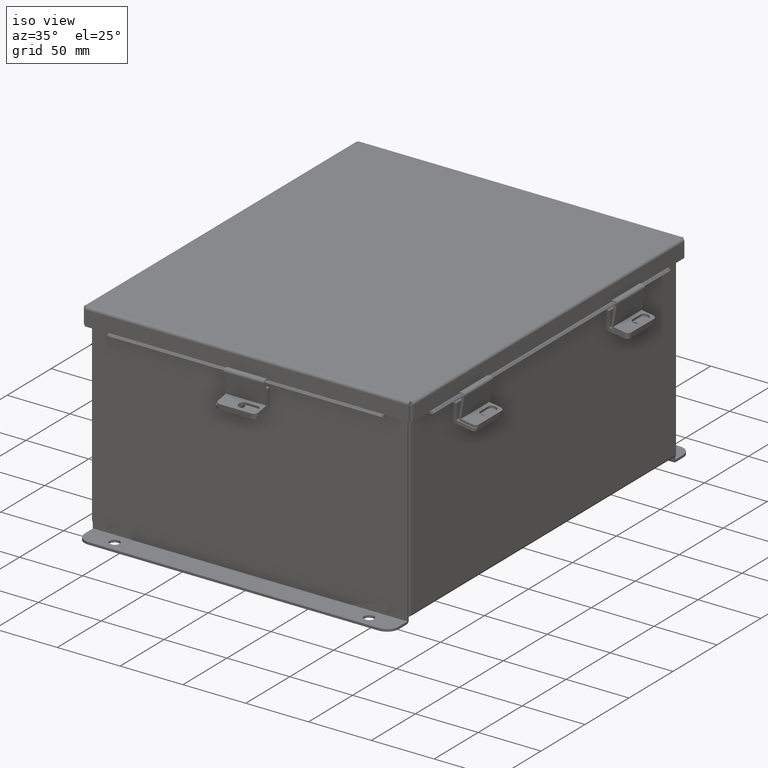
[diagram: clean part render]
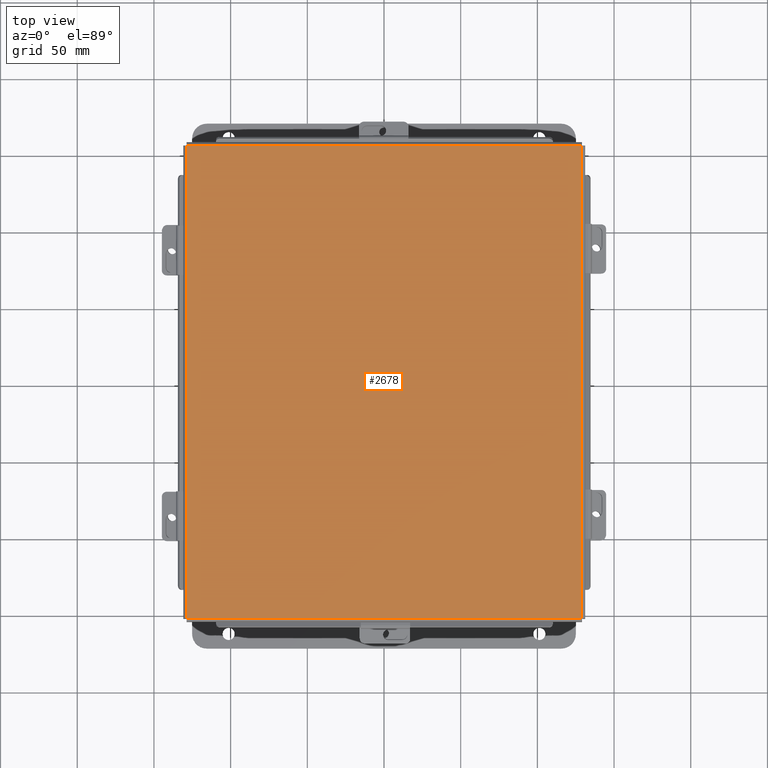
[diagram: tour spotlight — one face highlighted and labeled with its STEP entity id]
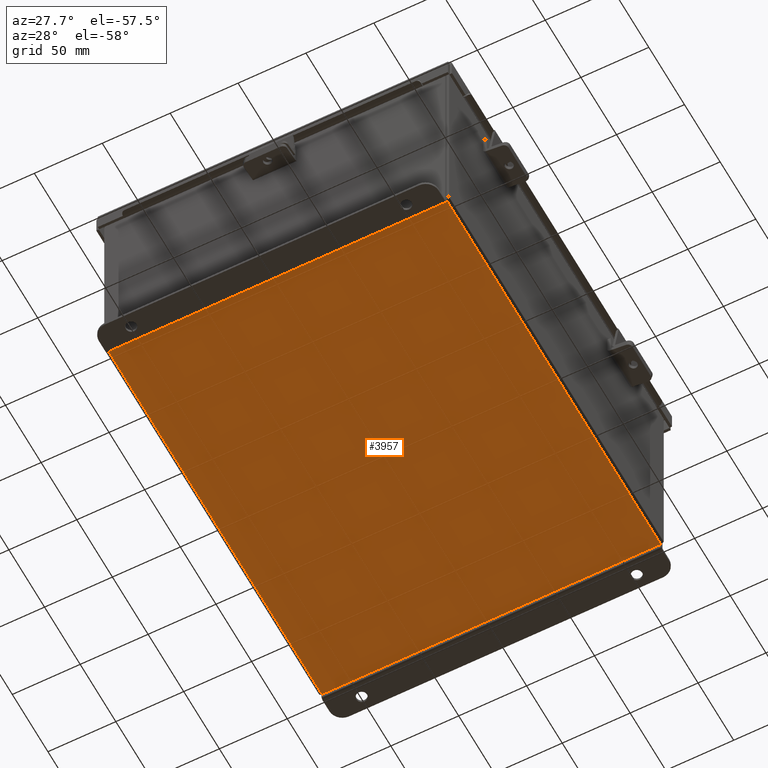
[diagram: tour spotlight — one face highlighted and labeled with its STEP entity id]
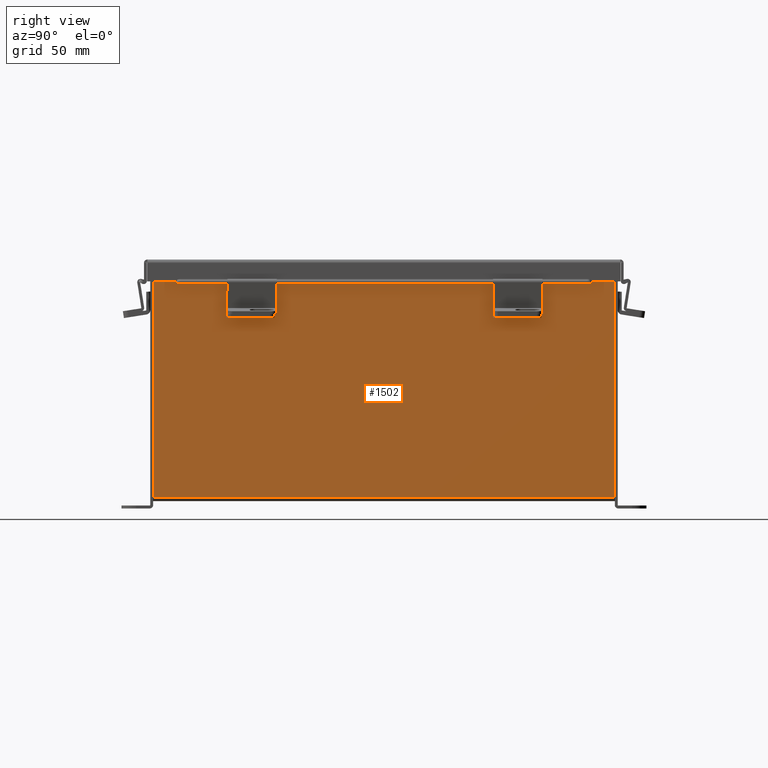
[diagram: tour spotlight — one face highlighted and labeled with its STEP entity id]
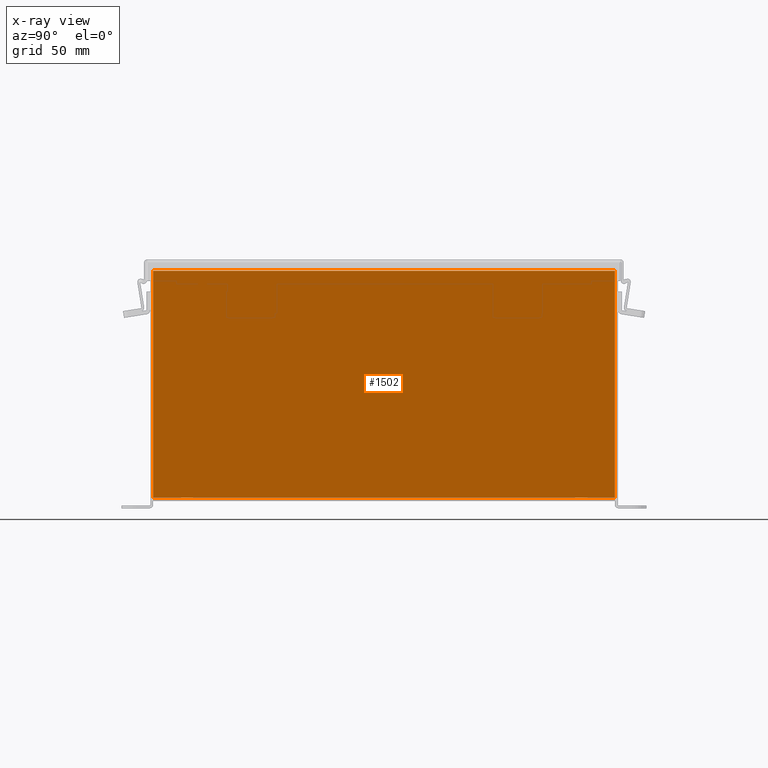
[diagram: x-ray of the same camera — body ghosted, this tour face saturated]
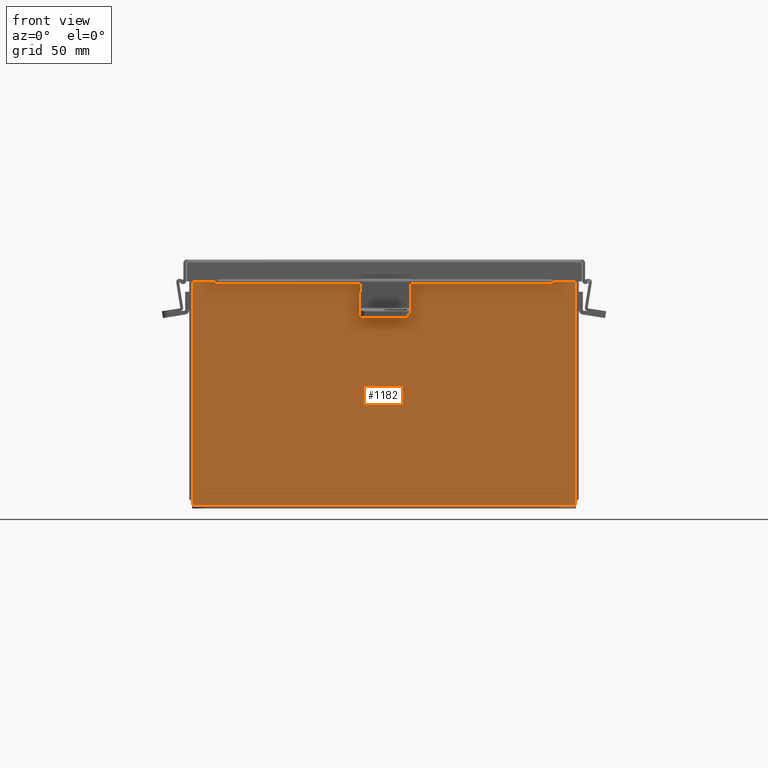
[diagram: tour spotlight — one face highlighted and labeled with its STEP entity id]
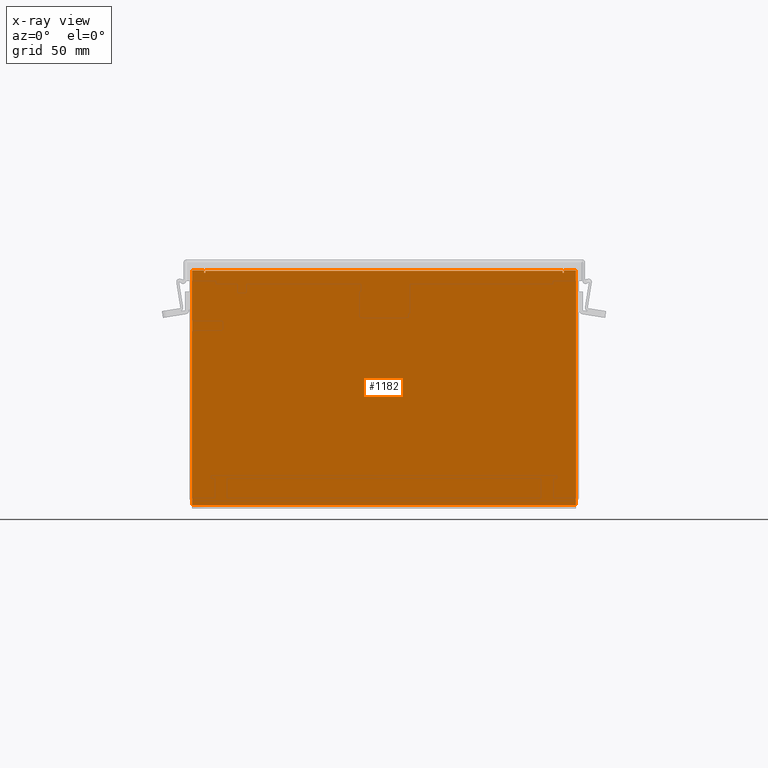
[diagram: x-ray of the same camera — body ghosted, this tour face saturated]
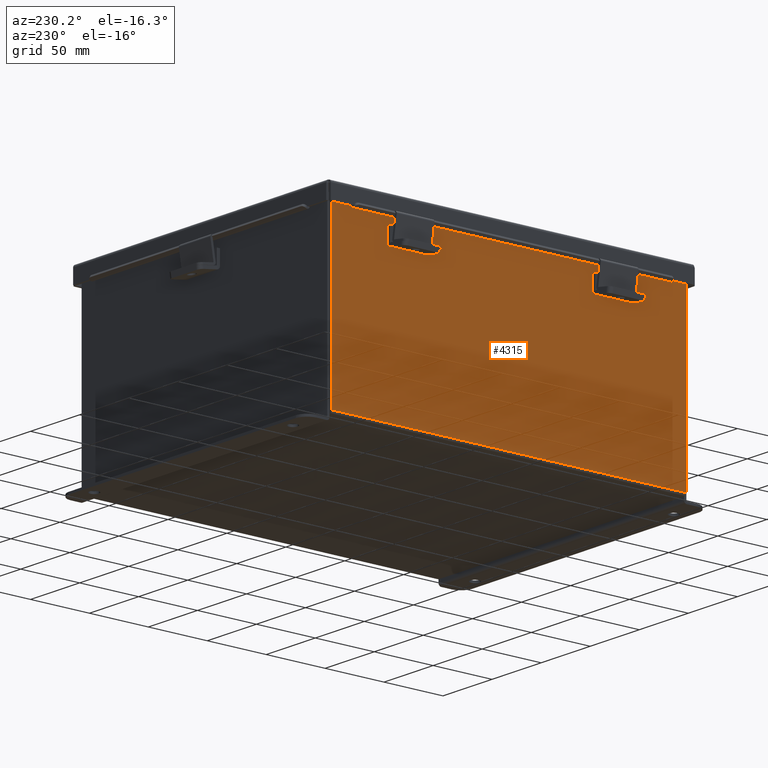
[diagram: tour spotlight — one face highlighted and labeled with its STEP entity id]
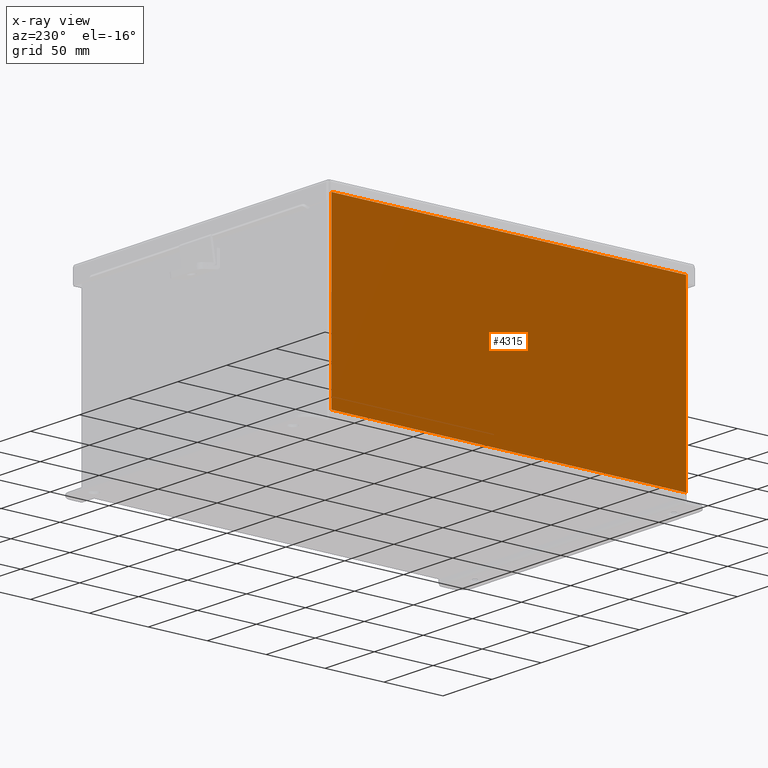
[diagram: x-ray of the same camera — body ghosted, this tour face saturated]
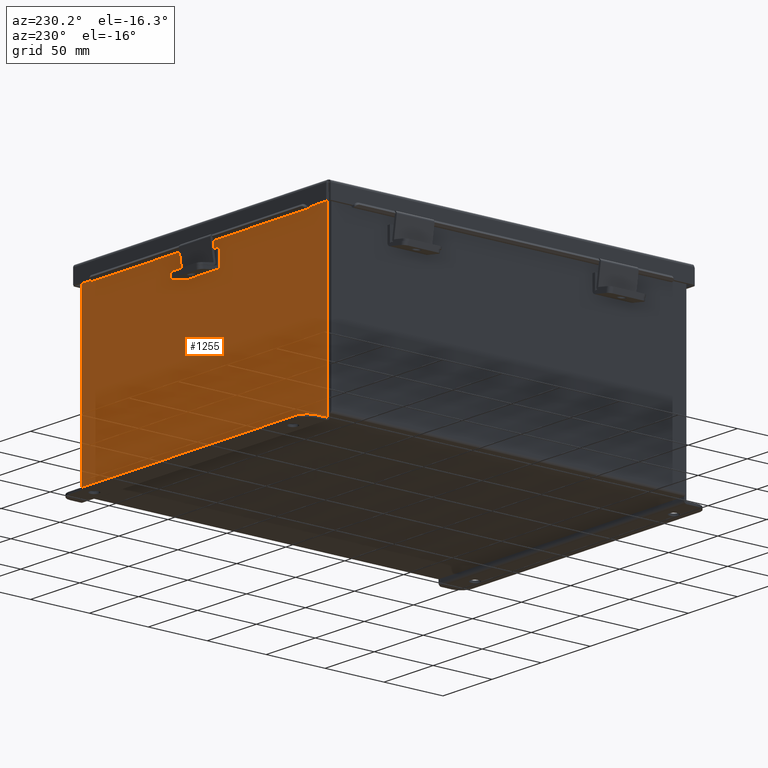
[diagram: tour spotlight — one face highlighted and labeled with its STEP entity id]
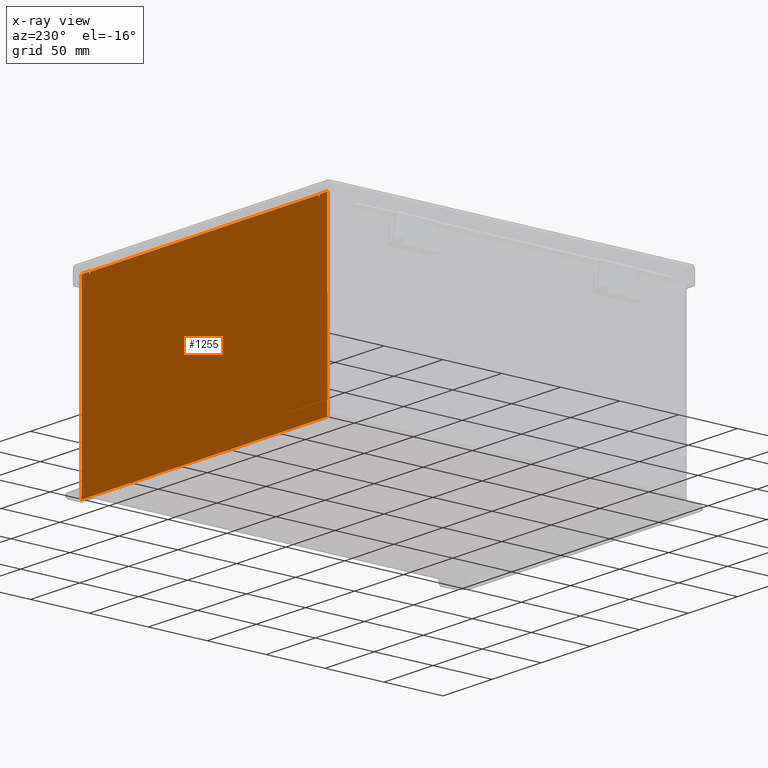
[diagram: x-ray of the same camera — body ghosted, this tour face saturated]
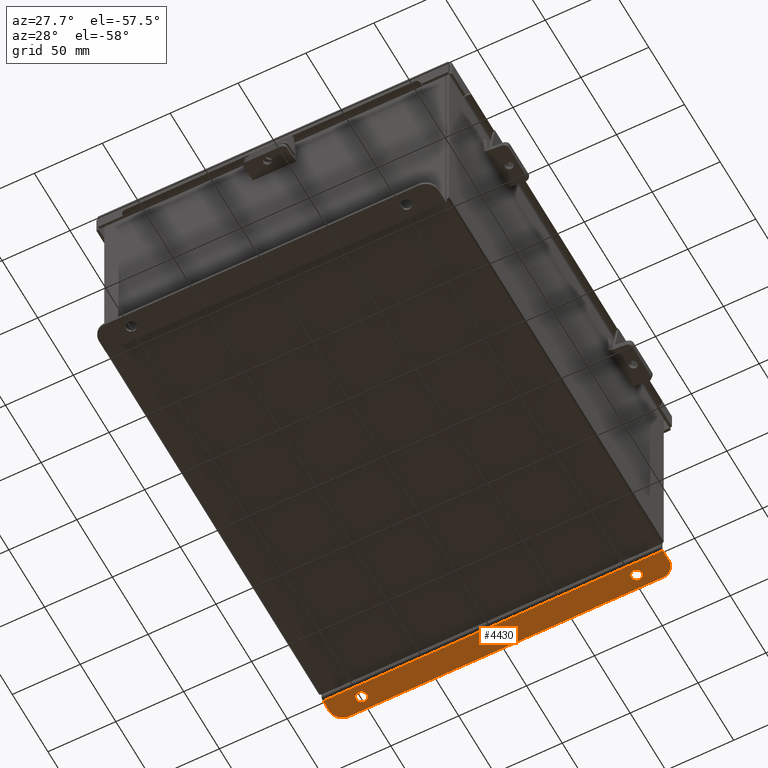
[diagram: tour spotlight — one face highlighted and labeled with its STEP entity id]
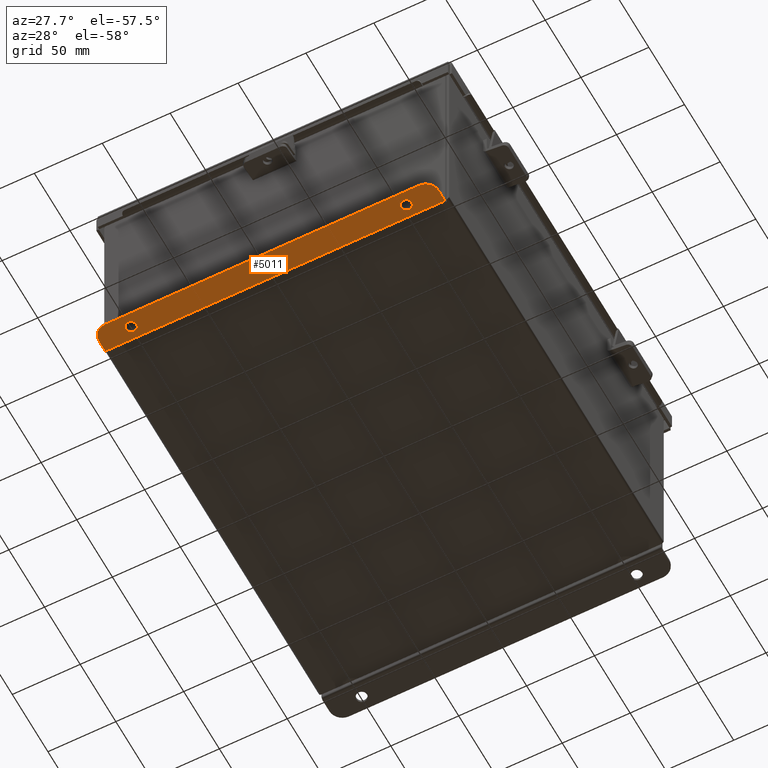
[diagram: tour spotlight — one face highlighted and labeled with its STEP entity id]
A machine part: a face-by-face anatomy tour. The part has 548 B-rep faces; the first image is the clean iso view, then the 8 largest visible faces are spotlighted one at a time (largest first), each with its STEP entity span.

Face 1 — top view, entity #2678. In plain terms, the highlighted planar face has unit normal (-0, -0, 1).
Definition (entity closure, byte-faithful):
#226 = DIRECTION ( 'NONE',  ( -1.000000000000000000, -3.215975411700707400E-030, 0.0000000000000000000 ) ) ;
#640 = DIRECTION ( 'NONE',  ( 1.000000000000000000, 3.215975411700707400E-030, -0.0000000000000000000 ) ) ;
#712 = LINE ( 'NONE', #5761, #3640 ) ;
#898 = CARTESIAN_POINT ( 'NONE',  ( 0.0000000000000000000, 0.0000000000000000000, -0.07470000000000015500 ) ) ;
#935 = ORIENTED_EDGE ( 'NONE', *, *, #3959, .T. ) ;
#1149 = CARTESIAN_POINT ( 'NONE',  ( 5.068550000000017900, 6.074478932188145400, -0.07470000000000015500 ) ) ;
#1336 = CARTESIAN_POINT ( 'NONE',  ( -5.068550000000016100, 6.068550000000009900, -0.07469999999999907300 ) ) ;
#1959 = VERTEX_POINT ( 'NONE', #1336 ) ;
#2573 = ORIENTED_EDGE ( 'NONE', *, *, #4231, .T. ) ;
#2678 = ADVANCED_FACE ( 'NONE', ( #9331 ), #3977, .T. ) ;
#3307 = EDGE_LOOP ( 'NONE', ( #5363, #3676, #2573, #935 ) ) ;
#3625 = EDGE_CURVE ( 'NONE', #5940, #5228, #7934, .T. ) ;
#3640 = VECTOR ( 'NONE', #6599, 39.37007874015748100 ) ;
#3662 = CARTESIAN_POINT ( 'NONE',  ( 5.068550000000017900, 6.068550000000009900, -0.07470000000000015500 ) ) ;
#3676 = ORIENTED_EDGE ( 'NONE', *, *, #3625, .T. ) ;
#3959 = EDGE_CURVE ( 'NONE', #6754, #1959, #712, .T. ) ;
#3968 = CARTESIAN_POINT ( 'NONE',  ( -5.068550000000016100, -6.068549999999990300, -0.07470000000000015500 ) ) ;
#3977 = PLANE ( 'NONE',  #8234 ) ;
#4231 = EDGE_CURVE ( 'NONE', #5228, #6754, #8002, .T. ) ;
#4513 = VECTOR ( 'NONE', #9621, 39.37007874015748100 ) ;
#4525 = LINE ( 'NONE', #5100, #8561 ) ;
#4832 = DIRECTION ( 'NONE',  ( 5.938065620492508100E-059, -1.846427556282924300E-029, -1.000000000000000000 ) ) ;
#4848 = CARTESIAN_POINT ( 'NONE',  ( 5.068550000000017900, -6.068549999999990300, -0.07470000000000015500 ) ) ;
#5100 = CARTESIAN_POINT ( 'NONE',  ( -5.074478932188153400, 6.068550000000009900, -0.07469999999999907300 ) ) ;
#5228 = VERTEX_POINT ( 'NONE', #4848 ) ;
#5363 = ORIENTED_EDGE ( 'NONE', *, *, #7717, .T. ) ;
#5605 = CARTESIAN_POINT ( 'NONE',  ( 5.074478932188155200, -6.068549999999990300, -0.07470000000000015500 ) ) ;
#5761 = CARTESIAN_POINT ( 'NONE',  ( -5.068550000000016100, -6.074478932188125800, -0.07470000000000015500 ) ) ;
#5940 = VERTEX_POINT ( 'NONE', #3662 ) ;
#6183 = DIRECTION ( 'NONE',  ( -1.000000000000000000, -3.215975411700707400E-030, -0.0000000000000000000 ) ) ;
#6599 = DIRECTION ( 'NONE',  ( 3.166671605124525800E-030, 1.000000000000000000, 1.853823127269377700E-029 ) ) ;
#6754 = VERTEX_POINT ( 'NONE', #3968 ) ;
#7717 = EDGE_CURVE ( 'NONE', #1959, #5940, #4525, .T. ) ;
#7934 = LINE ( 'NONE', #1149, #4513 ) ;
#8002 = LINE ( 'NONE', #5605, #8252 ) ;
#8234 = AXIS2_PLACEMENT_3D ( 'NONE', #898, #4832, #226 ) ;
#8252 = VECTOR ( 'NONE', #6183, 39.37007874015748100 ) ;
#8561 = VECTOR ( 'NONE', #640, 39.37007874015748100 ) ;
#9331 = FACE_OUTER_BOUND ( 'NONE', #3307, .T. ) ;
#9621 = DIRECTION ( 'NONE',  ( -3.166671605124525800E-030, -1.000000000000000000, -1.853823127269377700E-029 ) ) ;

Face 2 — auxiliary view, entity #3957. In plain terms, the highlighted planar face has unit normal (0, 0, -1).
Definition (entity closure, byte-faithful):
#243 = VECTOR ( 'NONE', #4986, 39.37007874015748100 ) ;
#310 = EDGE_CURVE ( 'NONE', #7312, #6515, #4752, .T. ) ;
#376 = CARTESIAN_POINT ( 'NONE',  ( -4.912300000000000100, -5.925300000000000000, -0.07469999999999994700 ) ) ;
#630 = CARTESIAN_POINT ( 'NONE',  ( 4.912300000000000100, -5.925300000000000000, -0.07470000000000000300 ) ) ;
#779 = CARTESIAN_POINT ( 'NONE',  ( 4.912300000000000100, 5.925299999999997300, -0.07469999999999994700 ) ) ;
#1035 = VERTEX_POINT ( 'NONE', #2884 ) ;
#1060 = ORIENTED_EDGE ( 'NONE', *, *, #310, .T. ) ;
#1067 = EDGE_LOOP ( 'NONE', ( #4807, #1060, #2855, #7561 ) ) ;
#1599 = DIRECTION ( 'NONE',  ( -0.0000000000000000000, 1.000000000000000000, -0.0000000000000000000 ) ) ;
#1881 = DIRECTION ( 'NONE',  ( -0.0000000000000000000, -1.000000000000000000, -0.0000000000000000000 ) ) ;
#1899 = DIRECTION ( 'NONE',  ( -1.000000000000000000, -0.0000000000000000000, -0.0000000000000000000 ) ) ;
#1922 = DIRECTION ( 'NONE',  ( 0.0000000000000000000, 0.0000000000000000000, -1.000000000000000000 ) ) ;
#2001 = CARTESIAN_POINT ( 'NONE',  ( 0.0000000000000000000, 0.0000000000000000000, -0.07470000000000000300 ) ) ;
#2032 = LINE ( 'NONE', #5699, #2041 ) ;
#2041 = VECTOR ( 'NONE', #1899, 39.37007874015748100 ) ;
#2855 = ORIENTED_EDGE ( 'NONE', *, *, #8204, .F. ) ;
#2884 = CARTESIAN_POINT ( 'NONE',  ( -4.912300000000000100, 5.925300000000000000, -0.07470000000000000300 ) ) ;
#3049 = LINE ( 'NONE', #376, #5722 ) ;
#3631 = PLANE ( 'NONE',  #7603 ) ;
#3957 = ADVANCED_FACE ( 'NONE', ( #4773 ), #3631, .T. ) ;
#4076 = CARTESIAN_POINT ( 'NONE',  ( -4.912300000000000100, -5.925299999999997300, -0.07469999999999994700 ) ) ;
#4232 = EDGE_CURVE ( 'NONE', #7312, #1035, #2032, .T. ) ;
#4745 = VECTOR ( 'NONE', #1881, 39.37007874015748100 ) ;
#4752 = LINE ( 'NONE', #5273, #4745 ) ;
#4773 = FACE_OUTER_BOUND ( 'NONE', #1067, .T. ) ;
#4807 = ORIENTED_EDGE ( 'NONE', *, *, #4232, .F. ) ;
#4986 = DIRECTION ( 'NONE',  ( 1.000000000000000000, 0.0000000000000000000, 0.0000000000000000000 ) ) ;
#5273 = CARTESIAN_POINT ( 'NONE',  ( 4.912300000000000100, 5.925300000000000000, -0.07469999999999994700 ) ) ;
#5376 = VERTEX_POINT ( 'NONE', #4076 ) ;
#5699 = CARTESIAN_POINT ( 'NONE',  ( -5.000000000000000000, 5.925300000000000000, -0.07470000000000000300 ) ) ;
#5722 = VECTOR ( 'NONE', #1599, 39.37007874015748100 ) ;
#6322 = EDGE_CURVE ( 'NONE', #5376, #1035, #3049, .T. ) ;
#6515 = VERTEX_POINT ( 'NONE', #630 ) ;
#7312 = VERTEX_POINT ( 'NONE', #779 ) ;
#7484 = LINE ( 'NONE', #9501, #243 ) ;
#7561 = ORIENTED_EDGE ( 'NONE', *, *, #6322, .T. ) ;
#7603 = AXIS2_PLACEMENT_3D ( 'NONE', #2001, #1922, #8170 ) ;
#8170 = DIRECTION ( 'NONE',  ( -1.000000000000000000, 0.0000000000000000000, -0.0000000000000000000 ) ) ;
#8204 = EDGE_CURVE ( 'NONE', #5376, #6515, #7484, .T. ) ;
#9501 = CARTESIAN_POINT ( 'NONE',  ( -5.000000000000000000, -5.925300000000000000, -0.07470000000000000300 ) ) ;

Face 3 — right view, entity #1502. An x-ray twin of the same camera follows (body ghosted, this face saturated) — the face is partly hidden behind the body. In plain terms, the highlighted planar face has unit normal (-1, 0, 0).
Definition (entity closure, byte-faithful):
#334 = VERTEX_POINT ( 'NONE', #3531 ) ;
#924 = AXIS2_PLACEMENT_3D ( 'NONE', #8867, #8581, #1219 ) ;
#950 = CARTESIAN_POINT ( 'NONE',  ( 5.000000000000000000, -5.925300000000000000, 0.01299999999999984300 ) ) ;
#1009 = ORIENTED_EDGE ( 'NONE', *, *, #8528, .F. ) ;
#1152 = VECTOR ( 'NONE', #6155, 39.37007874015748100 ) ;
#1164 = CARTESIAN_POINT ( 'NONE',  ( 5.000000000000000000, -5.925300000000000000, 0.01299999999999984300 ) ) ;
#1219 = DIRECTION ( 'NONE',  ( 3.548703509357741000E-015, 0.0000000000000000000, 1.000000000000000000 ) ) ;
#1232 = VERTEX_POINT ( 'NONE', #3351 ) ;
#1502 = ADVANCED_FACE ( 'NONE', ( #8097 ), #6407, .F. ) ;
#1990 = EDGE_LOOP ( 'NONE', ( #2334, #8154, #1009, #8267 ) ) ;
#2334 = ORIENTED_EDGE ( 'NONE', *, *, #4100, .T. ) ;
#2408 = VECTOR ( 'NONE', #5314, 39.37007874015748100 ) ;
#2448 = VERTEX_POINT ( 'NONE', #1164 ) ;
#2941 = LINE ( 'NONE', #5499, #6673 ) ;
#3351 = CARTESIAN_POINT ( 'NONE',  ( 5.000000000000021300, -5.925300000000000000, 5.837599999999999200 ) ) ;
#3531 = CARTESIAN_POINT ( 'NONE',  ( 5.000000000000021300, 5.925299999999997300, 5.837599999999999200 ) ) ;
#4100 = EDGE_CURVE ( 'NONE', #334, #1232, #7370, .T. ) ;
#5013 = DIRECTION ( 'NONE',  ( 3.548703509357741800E-015, -1.867738689135653700E-016, 1.000000000000000000 ) ) ;
#5125 = LINE ( 'NONE', #950, #1152 ) ;
#5314 = DIRECTION ( 'NONE',  ( -0.0000000000000000000, -1.000000000000000000, -0.0000000000000000000 ) ) ;
#5499 = CARTESIAN_POINT ( 'NONE',  ( 5.000000000000000000, 5.925300000000000000, -1.689477243581742800E-014 ) ) ;
#6004 = CARTESIAN_POINT ( 'NONE',  ( 5.000000000000021300, 5.925299999999998200, 5.837599999999999200 ) ) ;
#6092 = EDGE_CURVE ( 'NONE', #1232, #2448, #7590, .T. ) ;
#6155 = DIRECTION ( 'NONE',  ( -0.0000000000000000000, -1.000000000000000000, -0.0000000000000000000 ) ) ;
#6361 = DIRECTION ( 'NONE',  ( -3.548703509357741800E-015, 0.0000000000000000000, -1.000000000000000000 ) ) ;
#6407 = PLANE ( 'NONE',  #924 ) ;
#6673 = VECTOR ( 'NONE', #5013, 39.37007874015748100 ) ;
#6743 = CARTESIAN_POINT ( 'NONE',  ( 5.000000000000000000, -5.925300000000000000, -1.800458568324353400E-014 ) ) ;
#7370 = LINE ( 'NONE', #6004, #2408 ) ;
#7389 = EDGE_CURVE ( 'NONE', #9206, #334, #2941, .T. ) ;
#7486 = VECTOR ( 'NONE', #6361, 39.37007874015748100 ) ;
#7550 = CARTESIAN_POINT ( 'NONE',  ( 5.000000000000000000, 5.925299999999998200, 0.01299999999999984300 ) ) ;
#7590 = LINE ( 'NONE', #6743, #7486 ) ;
#8097 = FACE_OUTER_BOUND ( 'NONE', #1990, .T. ) ;
#8154 = ORIENTED_EDGE ( 'NONE', *, *, #6092, .T. ) ;
#8267 = ORIENTED_EDGE ( 'NONE', *, *, #7389, .T. ) ;
#8528 = EDGE_CURVE ( 'NONE', #9206, #2448, #5125, .T. ) ;
#8581 = DIRECTION ( 'NONE',  ( -1.000000000000000000, 0.0000000000000000000, 3.548703509357741000E-015 ) ) ;
#8867 = CARTESIAN_POINT ( 'NONE',  ( 5.000000000000000000, 0.0000000000000000000, -1.800458568324353400E-014 ) ) ;
#9206 = VERTEX_POINT ( 'NONE', #7550 ) ;

Face 4 — front view, entity #1182. An x-ray twin of the same camera follows (body ghosted, this face saturated) — the face is partly hidden behind the body. In plain terms, the highlighted planar face has unit normal (-0, 1, -0).
Definition (entity closure, byte-faithful):
#67 = CARTESIAN_POINT ( 'NONE',  ( -4.925300000000000000, 0.0000000000000000000, 2.925300000000001300 ) ) ;
#556 = AXIS2_PLACEMENT_3D ( 'NONE', #4272, #9561, #5041 ) ;
#622 = VERTEX_POINT ( 'NONE', #9323 ) ;
#655 = CARTESIAN_POINT ( 'NONE',  ( -4.925300000000000900, -1.748382715945128500E-014, -3.099299999999999500 ) ) ;
#786 = EDGE_CURVE ( 'NONE', #2792, #6084, #6985, .T. ) ;
#1052 = DIRECTION ( 'NONE',  ( 0.0000000000000000000, 0.0000000000000000000, -1.000000000000000000 ) ) ;
#1057 = VECTOR ( 'NONE', #5020, 39.37007874015748100 ) ;
#1182 = ADVANCED_FACE ( 'NONE', ( #8755 ), #7711, .F. ) ;
#1297 = CARTESIAN_POINT ( 'NONE',  ( 4.582299999999999200, 1.748382715945128500E-014, 2.874949999999999700 ) ) ;
#1299 = LINE ( 'NONE', #5340, #1057 ) ;
#1452 = VERTEX_POINT ( 'NONE', #8614 ) ;
#1602 = ORIENTED_EDGE ( 'NONE', *, *, #786, .F. ) ;
#1703 = EDGE_CURVE ( 'NONE', #1452, #8646, #3176, .T. ) ;
#1754 = CARTESIAN_POINT ( 'NONE',  ( 4.925299999999999100, 0.0000000000000000000, -3.099299999999999500 ) ) ;
#1863 = CARTESIAN_POINT ( 'NONE',  ( -4.925300000000000000, 0.0000000000000000000, 2.925300000000001300 ) ) ;
#1991 = LINE ( 'NONE', #9314, #2935 ) ;
#2008 = CARTESIAN_POINT ( 'NONE',  ( -4.925300000000000000, 0.0000000000000000000, 2.925300000000001300 ) ) ;
#2260 = DIRECTION ( 'NONE',  ( 0.0000000000000000000, 0.0000000000000000000, 1.000000000000000000 ) ) ;
#2571 = EDGE_CURVE ( 'NONE', #7644, #4691, #8922, .T. ) ;
#2603 = DIRECTION ( 'NONE',  ( 0.0000000000000000000, 0.0000000000000000000, 1.000000000000000000 ) ) ;
#2722 = VERTEX_POINT ( 'NONE', #1754 ) ;
#2759 = EDGE_CURVE ( 'NONE', #6122, #6828, #1991, .T. ) ;
#2767 = DIRECTION ( 'NONE',  ( 1.000000000000000000, 9.840417260773006200E-031, 0.0000000000000000000 ) ) ;
#2792 = VERTEX_POINT ( 'NONE', #1297 ) ;
#2831 = VECTOR ( 'NONE', #9104, 39.37007874015748100 ) ;
#2935 = VECTOR ( 'NONE', #2603, 39.37007874015748100 ) ;
#2978 = ORIENTED_EDGE ( 'NONE', *, *, #5173, .F. ) ;
#3094 = CARTESIAN_POINT ( 'NONE',  ( 4.925299999999999100, 1.748382715945128500E-014, 2.925300000000000000 ) ) ;
#3176 = LINE ( 'NONE', #5757, #2831 ) ;
#3476 = LINE ( 'NONE', #2008, #5701 ) ;
#3609 = AXIS2_PLACEMENT_3D ( 'NONE', #9364, #9557, #4743 ) ;
#3664 = ORIENTED_EDGE ( 'NONE', *, *, #8923, .F. ) ;
#3881 = ORIENTED_EDGE ( 'NONE', *, *, #7088, .T. ) ;
#3944 = AXIS2_PLACEMENT_3D ( 'NONE', #8966, #8934, #8632 ) ;
#3951 = ORIENTED_EDGE ( 'NONE', *, *, #2759, .F. ) ;
#4139 = CARTESIAN_POINT ( 'NONE',  ( 4.582299999999999200, 0.0000000000000000000, 0.0000000000000000000 ) ) ;
#4272 = CARTESIAN_POINT ( 'NONE',  ( 4.600974999999999100, 1.748382715945128500E-014, 2.874949999999999700 ) ) ;
#4484 = ORIENTED_EDGE ( 'NONE', *, *, #6884, .F. ) ;
#4671 = VERTEX_POINT ( 'NONE', #4920 ) ;
#4691 = VERTEX_POINT ( 'NONE', #7631 ) ;
#4743 = DIRECTION ( 'NONE',  ( 0.0000000000000000000, 0.0000000000000000000, -1.000000000000000000 ) ) ;
#4788 = CARTESIAN_POINT ( 'NONE',  ( -4.582300000000000000, 0.0000000000000000000, 2.874949999999998800 ) ) ;
#4887 = LINE ( 'NONE', #8177, #8211 ) ;
#4920 = CARTESIAN_POINT ( 'NONE',  ( -4.925300000000000000, 0.0000000000000000000, 2.925300000000001300 ) ) ;
#5020 = DIRECTION ( 'NONE',  ( 1.000000000000000000, 9.840417260773006200E-031, -0.0000000000000000000 ) ) ;
#5041 = DIRECTION ( 'NONE',  ( 0.0000000000000000000, 0.0000000000000000000, -1.000000000000000000 ) ) ;
#5173 = EDGE_CURVE ( 'NONE', #622, #2722, #5387, .T. ) ;
#5304 = DIRECTION ( 'NONE',  ( 1.000000000000000000, 9.840417260773006200E-031, -0.0000000000000000000 ) ) ;
#5340 = CARTESIAN_POINT ( 'NONE',  ( -4.582300000000000000, 2.185478394931410600E-015, 2.912300000000000100 ) ) ;
#5387 = LINE ( 'NONE', #655, #6233 ) ;
#5549 = CARTESIAN_POINT ( 'NONE',  ( -4.619650000000000000, 0.0000000000000000000, 2.874949999999998800 ) ) ;
#5613 = EDGE_CURVE ( 'NONE', #622, #4671, #8216, .T. ) ;
#5632 = EDGE_CURVE ( 'NONE', #4691, #2722, #6601, .T. ) ;
#5701 = VECTOR ( 'NONE', #2767, 39.37007874015748100 ) ;
#5748 = CARTESIAN_POINT ( 'NONE',  ( 4.619649999999999100, 1.748382715945128500E-014, 2.925300000000001300 ) ) ;
#5757 = CARTESIAN_POINT ( 'NONE',  ( -4.582300000000000000, 0.0000000000000000000, 0.0000000000000000000 ) ) ;
#5868 = CARTESIAN_POINT ( 'NONE',  ( 4.619649999999999100, 1.748382715945128500E-014, 2.874949999999999700 ) ) ;
#6016 = EDGE_CURVE ( 'NONE', #8646, #6122, #9473, .T. ) ;
#6084 = VERTEX_POINT ( 'NONE', #6654 ) ;
#6122 = VERTEX_POINT ( 'NONE', #5549 ) ;
#6233 = VECTOR ( 'NONE', #5304, 39.37007874015748100 ) ;
#6482 = VERTEX_POINT ( 'NONE', #5868 ) ;
#6499 = DIRECTION ( 'NONE',  ( 1.000000000000000000, 9.840417260773006200E-031, 0.0000000000000000000 ) ) ;
#6601 = LINE ( 'NONE', #3094, #8740 ) ;
#6654 = CARTESIAN_POINT ( 'NONE',  ( 4.582299999999999200, 1.748382715945128500E-014, 2.912299999999998800 ) ) ;
#6828 = VERTEX_POINT ( 'NONE', #9115 ) ;
#6884 = EDGE_CURVE ( 'NONE', #7644, #6482, #4887, .T. ) ;
#6885 = VECTOR ( 'NONE', #7398, 39.37007874015748100 ) ;
#6899 = VECTOR ( 'NONE', #6499, 39.37007874015748100 ) ;
#6985 = LINE ( 'NONE', #4139, #6885 ) ;
#7088 = EDGE_CURVE ( 'NONE', #1452, #6084, #1299, .T. ) ;
#7398 = DIRECTION ( 'NONE',  ( 0.0000000000000000000, 0.0000000000000000000, 1.000000000000000000 ) ) ;
#7631 = CARTESIAN_POINT ( 'NONE',  ( 4.925299999999999100, 1.748382715945128500E-014, 2.925300000000000000 ) ) ;
#7644 = VERTEX_POINT ( 'NONE', #5748 ) ;
#7711 = PLANE ( 'NONE',  #3609 ) ;
#7896 = ORIENTED_EDGE ( 'NONE', *, *, #2571, .T. ) ;
#7919 = DIRECTION ( 'NONE',  ( -2.170286390199955400E-014, -1.577721810442023600E-030, -1.000000000000000000 ) ) ;
#8011 = ORIENTED_EDGE ( 'NONE', *, *, #6016, .F. ) ;
#8082 = EDGE_LOOP ( 'NONE', ( #3951, #8011, #8631, #3881, #1602, #3664, #4484, #7896, #8572, #2978, #8378, #8507 ) ) ;
#8177 = CARTESIAN_POINT ( 'NONE',  ( 4.619649999999937000, 0.0000000000000000000, -9.998563656811202900E-014 ) ) ;
#8211 = VECTOR ( 'NONE', #7919, 39.37007874015748100 ) ;
#8216 = LINE ( 'NONE', #1863, #9087 ) ;
#8378 = ORIENTED_EDGE ( 'NONE', *, *, #5613, .T. ) ;
#8507 = ORIENTED_EDGE ( 'NONE', *, *, #9559, .T. ) ;
#8539 = CIRCLE ( 'NONE', #556, 0.01867500000000003900 ) ;
#8572 = ORIENTED_EDGE ( 'NONE', *, *, #5632, .T. ) ;
#8614 = CARTESIAN_POINT ( 'NONE',  ( -4.582300000000000000, 2.185478394931410600E-015, 2.912300000000000100 ) ) ;
#8631 = ORIENTED_EDGE ( 'NONE', *, *, #1703, .F. ) ;
#8632 = DIRECTION ( 'NONE',  ( 0.0000000000000000000, 0.0000000000000000000, -1.000000000000000000 ) ) ;
#8646 = VERTEX_POINT ( 'NONE', #4788 ) ;
#8740 = VECTOR ( 'NONE', #1052, 39.37007874015748100 ) ;
#8755 = FACE_OUTER_BOUND ( 'NONE', #8082, .T. ) ;
#8922 = LINE ( 'NONE', #67, #6899 ) ;
#8923 = EDGE_CURVE ( 'NONE', #6482, #2792, #8539, .T. ) ;
#8934 = DIRECTION ( 'NONE',  ( 9.840417260773006200E-031, 1.000000000000000000, -0.0000000000000000000 ) ) ;
#8966 = CARTESIAN_POINT ( 'NONE',  ( -4.600975000000000000, 0.0000000000000000000, 2.874949999999998800 ) ) ;
#9087 = VECTOR ( 'NONE', #2260, 39.37007874015748100 ) ;
#9104 = DIRECTION ( 'NONE',  ( 0.0000000000000000000, 0.0000000000000000000, -1.000000000000000000 ) ) ;
#9115 = CARTESIAN_POINT ( 'NONE',  ( -4.619650000000000000, 0.0000000000000000000, 2.925300000000000000 ) ) ;
#9314 = CARTESIAN_POINT ( 'NONE',  ( -4.619650000000000000, 0.0000000000000000000, 0.0000000000000000000 ) ) ;
#9323 = CARTESIAN_POINT ( 'NONE',  ( -4.925300000000000000, -1.748382715945128500E-014, -3.099299999999999500 ) ) ;
#9364 = CARTESIAN_POINT ( 'NONE',  ( 0.0000000000000000000, 0.0000000000000000000, 0.0000000000000000000 ) ) ;
#9473 = CIRCLE ( 'NONE', #3944, 0.01867500000000003900 ) ;
#9557 = DIRECTION ( 'NONE',  ( -9.840417260773006200E-031, -1.000000000000000000, -0.0000000000000000000 ) ) ;
#9559 = EDGE_CURVE ( 'NONE', #4671, #6828, #3476, .T. ) ;
#9561 = DIRECTION ( 'NONE',  ( 9.840417260773006200E-031, 1.000000000000000000, -0.0000000000000000000 ) ) ;

Face 5 — auxiliary view, entity #4315. An x-ray twin of the same camera follows (body ghosted, this face saturated) — the face is partly hidden behind the body. In plain terms, the highlighted planar face has unit normal (1, 0, 0).
Definition (entity closure, byte-faithful):
#287 = CARTESIAN_POINT ( 'NONE',  ( -5.000000000000000000, 5.925300000000000000, -1.800458568324353400E-014 ) ) ;
#1163 = ORIENTED_EDGE ( 'NONE', *, *, #9403, .T. ) ;
#1290 = VERTEX_POINT ( 'NONE', #1370 ) ;
#1370 = CARTESIAN_POINT ( 'NONE',  ( -5.000000000000021300, 5.925300000000000000, 5.837599999999999200 ) ) ;
#1404 = VECTOR ( 'NONE', #5492, 39.37007874015748100 ) ;
#1855 = VERTEX_POINT ( 'NONE', #7225 ) ;
#1857 = CARTESIAN_POINT ( 'NONE',  ( -5.000000000000000000, 5.925300000000000000, 0.01299999999999984300 ) ) ;
#2350 = LINE ( 'NONE', #5451, #4408 ) ;
#2407 = VECTOR ( 'NONE', #7028, 39.37007874015748100 ) ;
#2428 = PLANE ( 'NONE',  #7637 ) ;
#2618 = FACE_OUTER_BOUND ( 'NONE', #9584, .T. ) ;
#3148 = DIRECTION ( 'NONE',  ( 1.000000000000000000, 0.0000000000000000000, 3.548703509357741000E-015 ) ) ;
#3208 = DIRECTION ( 'NONE',  ( 3.548703509357741000E-015, 0.0000000000000000000, -1.000000000000000000 ) ) ;
#3342 = DIRECTION ( 'NONE',  ( -0.0000000000000000000, 1.000000000000000000, -0.0000000000000000000 ) ) ;
#3373 = LINE ( 'NONE', #287, #1404 ) ;
#3386 = EDGE_CURVE ( 'NONE', #1855, #4825, #2350, .T. ) ;
#3859 = EDGE_CURVE ( 'NONE', #1855, #5443, #8346, .T. ) ;
#4315 = ADVANCED_FACE ( 'NONE', ( #2618 ), #2428, .F. ) ;
#4408 = VECTOR ( 'NONE', #9399, 39.37007874015748100 ) ;
#4561 = EDGE_CURVE ( 'NONE', #4825, #1290, #8101, .T. ) ;
#4825 = VERTEX_POINT ( 'NONE', #6063 ) ;
#5146 = VECTOR ( 'NONE', #3342, 39.37007874015748100 ) ;
#5443 = VERTEX_POINT ( 'NONE', #7694 ) ;
#5451 = CARTESIAN_POINT ( 'NONE',  ( -5.000000000000000000, -5.925300000000000000, -1.689477243581742800E-014 ) ) ;
#5492 = DIRECTION ( 'NONE',  ( 3.548703509357741800E-015, 0.0000000000000000000, -1.000000000000000000 ) ) ;
#6063 = CARTESIAN_POINT ( 'NONE',  ( -5.000000000000021300, -5.925299999999997300, 5.837599999999999200 ) ) ;
#6967 = CARTESIAN_POINT ( 'NONE',  ( -5.000000000000021300, -5.925299999999998200, 5.837599999999999200 ) ) ;
#7028 = DIRECTION ( 'NONE',  ( 0.0000000000000000000, 1.000000000000000000, 0.0000000000000000000 ) ) ;
#7078 = ORIENTED_EDGE ( 'NONE', *, *, #4561, .T. ) ;
#7225 = CARTESIAN_POINT ( 'NONE',  ( -5.000000000000000000, -5.925299999999998200, 0.01299999999999984300 ) ) ;
#7341 = ORIENTED_EDGE ( 'NONE', *, *, #3386, .T. ) ;
#7447 = CARTESIAN_POINT ( 'NONE',  ( -5.000000000000000000, 0.0000000000000000000, -1.800458568324353400E-014 ) ) ;
#7579 = ORIENTED_EDGE ( 'NONE', *, *, #3859, .F. ) ;
#7637 = AXIS2_PLACEMENT_3D ( 'NONE', #7447, #3148, #3208 ) ;
#7694 = CARTESIAN_POINT ( 'NONE',  ( -5.000000000000000000, 5.925300000000000000, 0.01299999999999984300 ) ) ;
#8101 = LINE ( 'NONE', #6967, #2407 ) ;
#8346 = LINE ( 'NONE', #1857, #5146 ) ;
#9399 = DIRECTION ( 'NONE',  ( -3.548703509357741800E-015, 1.867738689135653700E-016, 1.000000000000000000 ) ) ;
#9403 = EDGE_CURVE ( 'NONE', #1290, #5443, #3373, .T. ) ;
#9584 = EDGE_LOOP ( 'NONE', ( #7078, #1163, #7579, #7341 ) ) ;

Face 6 — auxiliary view, entity #1255. An x-ray twin of the same camera follows (body ghosted, this face saturated) — the face is partly hidden behind the body. In plain terms, the highlighted planar face has unit normal (0, -1, 0).
Definition (entity closure, byte-faithful):
#11 = EDGE_CURVE ( 'NONE', #8015, #8512, #7491, .T. ) ;
#47 = VECTOR ( 'NONE', #4253, 39.37007874015748100 ) ;
#135 = ORIENTED_EDGE ( 'NONE', *, *, #8679, .F. ) ;
#176 = VERTEX_POINT ( 'NONE', #871 ) ;
#185 = CARTESIAN_POINT ( 'NONE',  ( -4.582299999999997400, 1.092739197465705300E-015, 2.912299999999999200 ) ) ;
#271 = CARTESIAN_POINT ( 'NONE',  ( 4.600975000000000000, 0.0000000000000000000, 2.874949999999999200 ) ) ;
#403 = CARTESIAN_POINT ( 'NONE',  ( -4.925300000000000000, 0.0000000000000000000, 2.925300000000000500 ) ) ;
#551 = EDGE_LOOP ( 'NONE', ( #2711, #2768, #2771, #8078, #606, #3974, #135, #4635, #7133, #3391, #7533, #4996 ) ) ;
#561 = CARTESIAN_POINT ( 'NONE',  ( -4.925300000000000000, 0.0000000000000000000, 2.925300000000000500 ) ) ;
#606 = ORIENTED_EDGE ( 'NONE', *, *, #4700, .F. ) ;
#669 = VERTEX_POINT ( 'NONE', #4137 ) ;
#728 = DIRECTION ( 'NONE',  ( -0.0000000000000000000, 1.000000000000000000, -0.0000000000000000000 ) ) ;
#741 = DIRECTION ( 'NONE',  ( 0.0000000000000000000, -1.000000000000000000, 0.0000000000000000000 ) ) ;
#871 = CARTESIAN_POINT ( 'NONE',  ( 4.582300000000000000, 0.0000000000000000000, 2.874949999999999200 ) ) ;
#875 = EDGE_CURVE ( 'NONE', #8512, #669, #4399, .T. ) ;
#947 = EDGE_CURVE ( 'NONE', #7651, #1595, #3250, .T. ) ;
#1136 = CARTESIAN_POINT ( 'NONE',  ( 4.619649999999937900, 0.0000000000000000000, -1.005320061668448800E-013 ) ) ;
#1186 = EDGE_CURVE ( 'NONE', #1640, #4114, #1341, .T. ) ;
#1255 = ADVANCED_FACE ( 'NONE', ( #8618 ), #6853, .F. ) ;
#1325 = CARTESIAN_POINT ( 'NONE',  ( -4.925299999999999100, 0.0000000000000000000, -3.099299999999999900 ) ) ;
#1341 = LINE ( 'NONE', #1772, #2742 ) ;
#1343 = VERTEX_POINT ( 'NONE', #7238 ) ;
#1553 = LINE ( 'NONE', #4728, #47 ) ;
#1595 = VERTEX_POINT ( 'NONE', #5595 ) ;
#1640 = VERTEX_POINT ( 'NONE', #1325 ) ;
#1772 = CARTESIAN_POINT ( 'NONE',  ( -4.925300000000000000, 0.0000000000000000000, -3.099299999999999900 ) ) ;
#1966 = LINE ( 'NONE', #4626, #7931 ) ;
#2096 = LINE ( 'NONE', #5867, #3814 ) ;
#2298 = VECTOR ( 'NONE', #8195, 39.37007874015748100 ) ;
#2415 = EDGE_CURVE ( 'NONE', #669, #8353, #6048, .T. ) ;
#2446 = VECTOR ( 'NONE', #7577, 39.37007874015748100 ) ;
#2691 = EDGE_CURVE ( 'NONE', #1640, #3020, #2096, .T. ) ;
#2711 = ORIENTED_EDGE ( 'NONE', *, *, #2415, .F. ) ;
#2742 = VECTOR ( 'NONE', #5838, 39.37007874015748100 ) ;
#2768 = ORIENTED_EDGE ( 'NONE', *, *, #875, .F. ) ;
#2771 = ORIENTED_EDGE ( 'NONE', *, *, #11, .F. ) ;
#2775 = CARTESIAN_POINT ( 'NONE',  ( -4.619649999999997400, 0.0000000000000000000, 0.0000000000000000000 ) ) ;
#3020 = VERTEX_POINT ( 'NONE', #403 ) ;
#3250 = LINE ( 'NONE', #561, #3945 ) ;
#3259 = EDGE_CURVE ( 'NONE', #1343, #176, #6872, .T. ) ;
#3295 = LINE ( 'NONE', #3536, #2298 ) ;
#3330 = CARTESIAN_POINT ( 'NONE',  ( 4.582300000000000000, 0.0000000000000000000, 2.912299999999999200 ) ) ;
#3391 = ORIENTED_EDGE ( 'NONE', *, *, #1186, .F. ) ;
#3536 = CARTESIAN_POINT ( 'NONE',  ( 4.582300000000000000, 0.0000000000000000000, 0.0000000000000000000 ) ) ;
#3814 = VECTOR ( 'NONE', #9069, 39.37007874015748100 ) ;
#3945 = VECTOR ( 'NONE', #5431, 39.37007874015748100 ) ;
#3974 = ORIENTED_EDGE ( 'NONE', *, *, #3259, .F. ) ;
#4114 = VERTEX_POINT ( 'NONE', #7620 ) ;
#4137 = CARTESIAN_POINT ( 'NONE',  ( -4.619649999999997400, 0.0000000000000000000, 2.874949999999999200 ) ) ;
#4253 = DIRECTION ( 'NONE',  ( 1.000000000000000000, 0.0000000000000000000, 0.0000000000000000000 ) ) ;
#4385 = LINE ( 'NONE', #9071, #2446 ) ;
#4399 = CIRCLE ( 'NONE', #6003, 0.01867500000000003900 ) ;
#4443 = CARTESIAN_POINT ( 'NONE',  ( -4.619649999999997400, 0.0000000000000000000, 2.925300000000000500 ) ) ;
#4626 = CARTESIAN_POINT ( 'NONE',  ( 4.925300000000000000, 0.0000000000000000000, 2.925300000000000500 ) ) ;
#4635 = ORIENTED_EDGE ( 'NONE', *, *, #947, .T. ) ;
#4700 = EDGE_CURVE ( 'NONE', #176, #8038, #3295, .T. ) ;
#4728 = CARTESIAN_POINT ( 'NONE',  ( -4.582300000000000000, 1.092739197465705300E-015, 2.912299999999999200 ) ) ;
#4732 = DIRECTION ( 'NONE',  ( -0.0000000000000000000, 1.000000000000000000, -0.0000000000000000000 ) ) ;
#4903 = EDGE_CURVE ( 'NONE', #8015, #8038, #1553, .T. ) ;
#4996 = ORIENTED_EDGE ( 'NONE', *, *, #9227, .T. ) ;
#5092 = VECTOR ( 'NONE', #8199, 39.37007874015748100 ) ;
#5251 = DIRECTION ( 'NONE',  ( 0.0000000000000000000, 0.0000000000000000000, -1.000000000000000000 ) ) ;
#5431 = DIRECTION ( 'NONE',  ( 1.000000000000000000, 0.0000000000000000000, 0.0000000000000000000 ) ) ;
#5595 = CARTESIAN_POINT ( 'NONE',  ( 4.925300000000000000, 0.0000000000000000000, 2.925300000000000500 ) ) ;
#5607 = DIRECTION ( 'NONE',  ( -2.170286390199978800E-014, 0.0000000000000000000, -1.000000000000000000 ) ) ;
#5683 = VECTOR ( 'NONE', #5607, 39.37007874015748100 ) ;
#5814 = DIRECTION ( 'NONE',  ( 0.0000000000000000000, -0.0000000000000000000, -1.000000000000000000 ) ) ;
#5838 = DIRECTION ( 'NONE',  ( 1.000000000000000000, -0.0000000000000000000, -0.0000000000000000000 ) ) ;
#5867 = CARTESIAN_POINT ( 'NONE',  ( -4.925300000000000000, 0.0000000000000000000, 2.925300000000000500 ) ) ;
#5956 = LINE ( 'NONE', #1136, #5683 ) ;
#6003 = AXIS2_PLACEMENT_3D ( 'NONE', #9516, #728, #5251 ) ;
#6048 = LINE ( 'NONE', #2775, #5092 ) ;
#6230 = CARTESIAN_POINT ( 'NONE',  ( 0.0000000000000000000, 0.0000000000000000000, 0.0000000000000000000 ) ) ;
#6465 = CARTESIAN_POINT ( 'NONE',  ( -4.582299999999997400, 0.0000000000000000000, 0.0000000000000000000 ) ) ;
#6477 = DIRECTION ( 'NONE',  ( 0.0000000000000000000, 0.0000000000000000000, -1.000000000000000000 ) ) ;
#6690 = AXIS2_PLACEMENT_3D ( 'NONE', #271, #4732, #9150 ) ;
#6853 = PLANE ( 'NONE',  #8361 ) ;
#6872 = CIRCLE ( 'NONE', #6690, 0.01867500000000003900 ) ;
#7133 = ORIENTED_EDGE ( 'NONE', *, *, #9343, .T. ) ;
#7228 = CARTESIAN_POINT ( 'NONE',  ( 4.619650000000000900, 0.0000000000000000000, 2.925300000000000500 ) ) ;
#7238 = CARTESIAN_POINT ( 'NONE',  ( 4.619650000000000000, 0.0000000000000000000, 2.874949999999999200 ) ) ;
#7491 = LINE ( 'NONE', #6465, #8817 ) ;
#7533 = ORIENTED_EDGE ( 'NONE', *, *, #2691, .T. ) ;
#7577 = DIRECTION ( 'NONE',  ( 1.000000000000000000, 0.0000000000000000000, 0.0000000000000000000 ) ) ;
#7620 = CARTESIAN_POINT ( 'NONE',  ( 4.925300000000000000, 0.0000000000000000000, -3.099299999999999900 ) ) ;
#7651 = VERTEX_POINT ( 'NONE', #7228 ) ;
#7931 = VECTOR ( 'NONE', #9161, 39.37007874015748100 ) ;
#8015 = VERTEX_POINT ( 'NONE', #185 ) ;
#8038 = VERTEX_POINT ( 'NONE', #3330 ) ;
#8078 = ORIENTED_EDGE ( 'NONE', *, *, #4903, .T. ) ;
#8195 = DIRECTION ( 'NONE',  ( 0.0000000000000000000, 0.0000000000000000000, 1.000000000000000000 ) ) ;
#8199 = DIRECTION ( 'NONE',  ( 0.0000000000000000000, 0.0000000000000000000, 1.000000000000000000 ) ) ;
#8353 = VERTEX_POINT ( 'NONE', #4443 ) ;
#8361 = AXIS2_PLACEMENT_3D ( 'NONE', #6230, #741, #5814 ) ;
#8416 = CARTESIAN_POINT ( 'NONE',  ( -4.582299999999997400, 0.0000000000000000000, 2.874949999999999200 ) ) ;
#8512 = VERTEX_POINT ( 'NONE', #8416 ) ;
#8618 = FACE_OUTER_BOUND ( 'NONE', #551, .T. ) ;
#8679 = EDGE_CURVE ( 'NONE', #7651, #1343, #5956, .T. ) ;
#8817 = VECTOR ( 'NONE', #6477, 39.37007874015748100 ) ;
#9069 = DIRECTION ( 'NONE',  ( -0.0000000000000000000, -0.0000000000000000000, 1.000000000000000000 ) ) ;
#9071 = CARTESIAN_POINT ( 'NONE',  ( -4.925300000000000000, 0.0000000000000000000, 2.925300000000000500 ) ) ;
#9150 = DIRECTION ( 'NONE',  ( 0.0000000000000000000, 0.0000000000000000000, -1.000000000000000000 ) ) ;
#9161 = DIRECTION ( 'NONE',  ( 0.0000000000000000000, 0.0000000000000000000, -1.000000000000000000 ) ) ;
#9227 = EDGE_CURVE ( 'NONE', #3020, #8353, #4385, .T. ) ;
#9343 = EDGE_CURVE ( 'NONE', #1595, #4114, #1966, .T. ) ;
#9516 = CARTESIAN_POINT ( 'NONE',  ( -4.600974999999997400, 0.0000000000000000000, 2.874949999999999200 ) ) ;

Face 7 — auxiliary view, entity #4430. In plain terms, the highlighted planar face has unit normal (0, 0, 1).
Definition (entity closure, byte-faithful):
#83 = AXIS2_PLACEMENT_3D ( 'NONE', #4031, #534, #8921 ) ;
#94 = EDGE_LOOP ( 'NONE', ( #3222, #3353 ) ) ;
#153 = FACE_BOUND ( 'NONE', #8980, .T. ) ;
#157 = DIRECTION ( 'NONE',  ( 0.0000000000000000000, -3.702694488566362300E-015, -1.000000000000000000 ) ) ;
#251 = VECTOR ( 'NONE', #7902, 39.37007874015748100 ) ;
#314 = AXIS2_PLACEMENT_3D ( 'NONE', #505, #7182, #6898 ) ;
#341 = EDGE_CURVE ( 'NONE', #4379, #9078, #4632, .T. ) ;
#380 = LINE ( 'NONE', #7390, #1562 ) ;
#428 = DIRECTION ( 'NONE',  ( 0.0000000000000000000, -3.702694488566362300E-015, -1.000000000000000000 ) ) ;
#505 = CARTESIAN_POINT ( 'NONE',  ( 0.0000000000000000000, -1.092739197465705300E-014, -3.187000000000000300 ) ) ;
#534 = DIRECTION ( 'NONE',  ( 0.0000000000000000000, -3.702694488566362300E-015, -1.000000000000000000 ) ) ;
#666 = DIRECTION ( 'NONE',  ( 0.0000000000000000000, -1.000000000000000000, 4.370956789862820400E-015 ) ) ;
#688 = DIRECTION ( 'NONE',  ( -0.0000000000000000000, -3.702694488566362300E-015, -1.000000000000000000 ) ) ;
#830 = LINE ( 'NONE', #2477, #2952 ) ;
#916 = EDGE_LOOP ( 'NONE', ( #1535, #8248, #1312, #3594, #8297, #3506 ) ) ;
#1033 = CARTESIAN_POINT ( 'NONE',  ( -3.987800000000000900, 0.2067999999999984900, -3.187000000000000700 ) ) ;
#1042 = CARTESIAN_POINT ( 'NONE',  ( -4.550300000000000000, 0.3627999999999997300, -3.187000000000001200 ) ) ;
#1162 = CIRCLE ( 'NONE', #5849, 0.1560000000000001900 ) ;
#1312 = ORIENTED_EDGE ( 'NONE', *, *, #7517, .T. ) ;
#1381 = ORIENTED_EDGE ( 'NONE', *, *, #3033, .F. ) ;
#1535 = ORIENTED_EDGE ( 'NONE', *, *, #7404, .T. ) ;
#1562 = VECTOR ( 'NONE', #4346, 39.37007874015748100 ) ;
#1802 = VERTEX_POINT ( 'NONE', #4876 ) ;
#1861 = CARTESIAN_POINT ( 'NONE',  ( 3.987800000000000000, 0.2067999999999984900, -3.187000000000000700 ) ) ;
#1875 = DIRECTION ( 'NONE',  ( 0.0000000000000000000, -1.000000000000000000, 4.370956789862820400E-015 ) ) ;
#2112 = CARTESIAN_POINT ( 'NONE',  ( 4.550300000000000000, 0.3627999999999997300, -3.187000000000001200 ) ) ;
#2477 = CARTESIAN_POINT ( 'NONE',  ( -4.925300000000000000, -1.092739197465705300E-014, -3.187000000000000300 ) ) ;
#2504 = DIRECTION ( 'NONE',  ( 0.0000000000000000000, 1.000000000000000000, -3.702694488566362300E-015 ) ) ;
#2509 = VERTEX_POINT ( 'NONE', #1861 ) ;
#2673 = CARTESIAN_POINT ( 'NONE',  ( 4.925300000000000000, -1.092739197465705300E-014, -3.187000000000000300 ) ) ;
#2874 = AXIS2_PLACEMENT_3D ( 'NONE', #2112, #688, #1875 ) ;
#2952 = VECTOR ( 'NONE', #2504, 39.37007874015748100 ) ;
#3033 = EDGE_CURVE ( 'NONE', #1802, #5166, #3614, .T. ) ;
#3058 = CIRCLE ( 'NONE', #7154, 0.1560000000000001900 ) ;
#3197 = EDGE_CURVE ( 'NONE', #4741, #9016, #5690, .T. ) ;
#3222 = ORIENTED_EDGE ( 'NONE', *, *, #7123, .F. ) ;
#3353 = ORIENTED_EDGE ( 'NONE', *, *, #8694, .F. ) ;
#3506 = ORIENTED_EDGE ( 'NONE', *, *, #341, .T. ) ;
#3594 = ORIENTED_EDGE ( 'NONE', *, *, #4953, .F. ) ;
#3614 = CIRCLE ( 'NONE', #83, 0.1560000000000001900 ) ;
#3715 = CIRCLE ( 'NONE', #9228, 0.1560000000000001900 ) ;
#3860 = CARTESIAN_POINT ( 'NONE',  ( 0.0000000000000000000, 0.7378000000000000100, -3.187000000000002900 ) ) ;
#4018 = DIRECTION ( 'NONE',  ( 1.000000000000000000, 0.0000000000000000000, -0.0000000000000000000 ) ) ;
#4031 = CARTESIAN_POINT ( 'NONE',  ( -3.987800000000000900, 0.3627999999999986800, -3.187000000000001200 ) ) ;
#4131 = PLANE ( 'NONE',  #314 ) ;
#4346 = DIRECTION ( 'NONE',  ( 1.000000000000000000, -0.0000000000000000000, -0.0000000000000000000 ) ) ;
#4379 = VERTEX_POINT ( 'NONE', #5513 ) ;
#4430 = ADVANCED_FACE ( 'NONE', ( #153, #5395, #7769 ), #4131, .F. ) ;
#4476 = EDGE_CURVE ( 'NONE', #6727, #4379, #830, .T. ) ;
#4507 = DIRECTION ( 'NONE',  ( 0.0000000000000000000, 1.000000000000000000, -3.502369222646487000E-015 ) ) ;
#4542 = DIRECTION ( 'NONE',  ( 0.0000000000000000000, -3.702694488566362300E-015, -1.000000000000000000 ) ) ;
#4581 = CARTESIAN_POINT ( 'NONE',  ( -3.987800000000000900, 0.3627999999999986800, -3.187000000000001200 ) ) ;
#4609 = CARTESIAN_POINT ( 'NONE',  ( 3.987800000000000000, 0.3627999999999986800, -3.187000000000001200 ) ) ;
#4632 = CIRCLE ( 'NONE', #9066, 0.3750000000000000600 ) ;
#4646 = LINE ( 'NONE', #3860, #8700 ) ;
#4741 = VERTEX_POINT ( 'NONE', #8469 ) ;
#4865 = CARTESIAN_POINT ( 'NONE',  ( 3.987800000000000000, 0.3627999999999986800, -3.187000000000001200 ) ) ;
#4876 = CARTESIAN_POINT ( 'NONE',  ( -3.987800000000000900, 0.5187999999999988200, -3.187000000000001600 ) ) ;
#4899 = CARTESIAN_POINT ( 'NONE',  ( 4.925300000000000000, 0.01300000000000010700, -3.187000000000000300 ) ) ;
#4953 = EDGE_CURVE ( 'NONE', #6727, #7103, #380, .T. ) ;
#5166 = VERTEX_POINT ( 'NONE', #1033 ) ;
#5215 = ORIENTED_EDGE ( 'NONE', *, *, #7953, .F. ) ;
#5357 = DIRECTION ( 'NONE',  ( 0.0000000000000000000, 1.000000000000000000, -3.502369222646487000E-015 ) ) ;
#5395 = FACE_BOUND ( 'NONE', #94, .T. ) ;
#5440 = CARTESIAN_POINT ( 'NONE',  ( -4.925299999999999100, 0.01300000000000010700, -3.187000000000000300 ) ) ;
#5513 = CARTESIAN_POINT ( 'NONE',  ( -4.925300000000000000, 0.3627999999999997300, -3.187000000000001200 ) ) ;
#5639 = DIRECTION ( 'NONE',  ( 0.0000000000000000000, 1.000000000000000000, -3.502369222646487000E-015 ) ) ;
#5690 = CIRCLE ( 'NONE', #2874, 0.3750000000000000600 ) ;
#5849 = AXIS2_PLACEMENT_3D ( 'NONE', #4581, #157, #5357 ) ;
#6445 = LINE ( 'NONE', #2673, #251 ) ;
#6727 = VERTEX_POINT ( 'NONE', #5440 ) ;
#6898 = DIRECTION ( 'NONE',  ( 0.0000000000000000000, -1.000000000000000000, 3.702694488566362300E-015 ) ) ;
#7103 = VERTEX_POINT ( 'NONE', #4899 ) ;
#7123 = EDGE_CURVE ( 'NONE', #8061, #2509, #3058, .T. ) ;
#7154 = AXIS2_PLACEMENT_3D ( 'NONE', #4609, #4542, #4507 ) ;
#7182 = DIRECTION ( 'NONE',  ( 0.0000000000000000000, 3.702694488566362300E-015, 1.000000000000000000 ) ) ;
#7390 = CARTESIAN_POINT ( 'NONE',  ( 4.925300000000000000, 0.01300000000000010700, -3.187000000000000300 ) ) ;
#7404 = EDGE_CURVE ( 'NONE', #9078, #4741, #4646, .T. ) ;
#7517 = EDGE_CURVE ( 'NONE', #9016, #7103, #6445, .T. ) ;
#7769 = FACE_OUTER_BOUND ( 'NONE', #916, .T. ) ;
#7902 = DIRECTION ( 'NONE',  ( 0.0000000000000000000, -1.000000000000000000, 3.702694488566362300E-015 ) ) ;
#7953 = EDGE_CURVE ( 'NONE', #5166, #1802, #1162, .T. ) ;
#8061 = VERTEX_POINT ( 'NONE', #9376 ) ;
#8248 = ORIENTED_EDGE ( 'NONE', *, *, #3197, .T. ) ;
#8297 = ORIENTED_EDGE ( 'NONE', *, *, #4476, .T. ) ;
#8469 = CARTESIAN_POINT ( 'NONE',  ( 4.550300000000000000, 0.7378000000000000100, -3.187000000000002900 ) ) ;
#8623 = DIRECTION ( 'NONE',  ( -0.0000000000000000000, -3.702694488566362300E-015, -1.000000000000000000 ) ) ;
#8694 = EDGE_CURVE ( 'NONE', #2509, #8061, #3715, .T. ) ;
#8700 = VECTOR ( 'NONE', #4018, 39.37007874015748100 ) ;
#8921 = DIRECTION ( 'NONE',  ( 0.0000000000000000000, 1.000000000000000000, -3.502369222646487000E-015 ) ) ;
#8940 = CARTESIAN_POINT ( 'NONE',  ( 4.925300000000000000, 0.3627999999999997300, -3.187000000000001200 ) ) ;
#8970 = CARTESIAN_POINT ( 'NONE',  ( -4.550300000000000000, 0.7378000000000000100, -3.187000000000002900 ) ) ;
#8980 = EDGE_LOOP ( 'NONE', ( #1381, #5215 ) ) ;
#9016 = VERTEX_POINT ( 'NONE', #8940 ) ;
#9066 = AXIS2_PLACEMENT_3D ( 'NONE', #1042, #8623, #666 ) ;
#9078 = VERTEX_POINT ( 'NONE', #8970 ) ;
#9228 = AXIS2_PLACEMENT_3D ( 'NONE', #4865, #428, #5639 ) ;
#9376 = CARTESIAN_POINT ( 'NONE',  ( 3.987800000000000000, 0.5187999999999988200, -3.187000000000001600 ) ) ;

Face 8 — auxiliary view, entity #5011. In plain terms, the highlighted planar face has unit normal (0, -0, 1).
Definition (entity closure, byte-faithful):
#98 = DIRECTION ( 'NONE',  ( 0.0000000000000000000, 3.702694488566362300E-015, 1.000000000000000000 ) ) ;
#152 = CARTESIAN_POINT ( 'NONE',  ( 4.550299999999999100, 0.7378000000000000100, -3.187000000000002500 ) ) ;
#163 = AXIS2_PLACEMENT_3D ( 'NONE', #276, #6359, #7683 ) ;
#183 = FACE_BOUND ( 'NONE', #968, .T. ) ;
#253 = AXIS2_PLACEMENT_3D ( 'NONE', #6505, #2026, #7240 ) ;
#276 = CARTESIAN_POINT ( 'NONE',  ( -3.987800000000000000, 0.3627999999999997300, -3.187000000000009600 ) ) ;
#340 = VECTOR ( 'NONE', #4400, 39.37007874015748100 ) ;
#584 = DIRECTION ( 'NONE',  ( 0.0000000000000000000, 1.000000000000000000, -3.502369222646487000E-015 ) ) ;
#743 = FACE_OUTER_BOUND ( 'NONE', #5947, .T. ) ;
#841 = VERTEX_POINT ( 'NONE', #2196 ) ;
#863 = VERTEX_POINT ( 'NONE', #3425 ) ;
#915 = CARTESIAN_POINT ( 'NONE',  ( 4.925299999999981400, 0.01300000000000120000, -3.186999999999999800 ) ) ;
#968 = EDGE_LOOP ( 'NONE', ( #6623, #4156 ) ) ;
#1023 = ORIENTED_EDGE ( 'NONE', *, *, #4289, .F. ) ;
#1144 = EDGE_CURVE ( 'NONE', #9404, #4378, #8350, .T. ) ;
#1275 = DIRECTION ( 'NONE',  ( 1.000000000000000000, 9.840417260773006200E-031, -0.0000000000000000000 ) ) ;
#1305 = AXIS2_PLACEMENT_3D ( 'NONE', #2756, #98, #2322 ) ;
#1317 = DIRECTION ( 'NONE',  ( -9.850236850779428700E-031, -1.000000000000000000, 3.702694488566362300E-015 ) ) ;
#1318 = PLANE ( 'NONE',  #1305 ) ;
#1327 = AXIS2_PLACEMENT_3D ( 'NONE', #6992, #4042, #4238 ) ;
#1402 = EDGE_CURVE ( 'NONE', #3321, #6434, #7042, .T. ) ;
#1517 = CARTESIAN_POINT ( 'NONE',  ( 4.925299999999981400, -1.092739197465705300E-014, -3.186999999999999800 ) ) ;
#1707 = VERTEX_POINT ( 'NONE', #8410 ) ;
#1860 = CARTESIAN_POINT ( 'NONE',  ( -4.925300000000017800, 0.01300000000000010700, -3.186999999999999800 ) ) ;
#2026 = DIRECTION ( 'NONE',  ( 0.0000000000000000000, -3.362274453740631800E-015, -1.000000000000000000 ) ) ;
#2175 = CARTESIAN_POINT ( 'NONE',  ( 4.550299999999999100, 0.3628000000000008400, -3.187000000000000700 ) ) ;
#2196 = CARTESIAN_POINT ( 'NONE',  ( -3.987800000000000000, 0.2067999999999996000, -3.187000000000008700 ) ) ;
#2322 = DIRECTION ( 'NONE',  ( -9.850236850779428700E-031, -1.000000000000000000, 3.702694488566362300E-015 ) ) ;
#2745 = CIRCLE ( 'NONE', #9101, 0.1560000000000001900 ) ;
#2756 = CARTESIAN_POINT ( 'NONE',  ( 0.0000000000000000000, -1.092739197465705300E-014, -3.186999999999999800 ) ) ;
#3032 = CIRCLE ( 'NONE', #253, 0.1560000000000001900 ) ;
#3216 = VERTEX_POINT ( 'NONE', #4006 ) ;
#3244 = EDGE_LOOP ( 'NONE', ( #1023, #4466 ) ) ;
#3321 = VERTEX_POINT ( 'NONE', #152 ) ;
#3362 = CARTESIAN_POINT ( 'NONE',  ( -4.550300000000000000, 0.7377999999999989000, -3.187000000000002500 ) ) ;
#3411 = CARTESIAN_POINT ( 'NONE',  ( 4.925299999999999100, 0.3628000000000008400, -3.187000000000009600 ) ) ;
#3425 = CARTESIAN_POINT ( 'NONE',  ( 3.987799999999999100, 0.2067999999999996000, -3.187000000000000300 ) ) ;
#3660 = LINE ( 'NONE', #915, #3751 ) ;
#3751 = VECTOR ( 'NONE', #1275, 39.37007874015748100 ) ;
#3883 = FACE_BOUND ( 'NONE', #3244, .T. ) ;
#3981 = CARTESIAN_POINT ( 'NONE',  ( -4.925300000000000000, 0.3627999999999997300, -3.187000000000009600 ) ) ;
#4004 = DIRECTION ( 'NONE',  ( 0.0000000000000000000, 1.000000000000000000, -3.502369222646487000E-015 ) ) ;
#4006 = CARTESIAN_POINT ( 'NONE',  ( 4.925299999999981400, 0.01300000000000010700, -3.186999999999999800 ) ) ;
#4029 = DIRECTION ( 'NONE',  ( 0.0000000000000000000, -3.362274453740631800E-015, -1.000000000000000000 ) ) ;
#4042 = DIRECTION ( 'NONE',  ( -0.0000000000000000000, -3.702694488566362300E-015, -1.000000000000000000 ) ) ;
#4067 = CARTESIAN_POINT ( 'NONE',  ( 3.987799999999999100, 0.3627999999999997300, -3.187000000000000700 ) ) ;
#4089 = VECTOR ( 'NONE', #1317, 39.37007874015748100 ) ;
#4156 = ORIENTED_EDGE ( 'NONE', *, *, #8859, .F. ) ;
#4238 = DIRECTION ( 'NONE',  ( 0.0000000000000000000, -1.000000000000000000, 4.370956789862820400E-015 ) ) ;
#4289 = EDGE_CURVE ( 'NONE', #8642, #863, #2745, .T. ) ;
#4378 = VERTEX_POINT ( 'NONE', #3362 ) ;
#4400 = DIRECTION ( 'NONE',  ( 1.000000000000000000, 9.840417260773006200E-031, 0.0000000000000000000 ) ) ;
#4463 = EDGE_CURVE ( 'NONE', #1707, #841, #6702, .T. ) ;
#4466 = ORIENTED_EDGE ( 'NONE', *, *, #7137, .F. ) ;
#4550 = AXIS2_PLACEMENT_3D ( 'NONE', #2175, #6621, #6148 ) ;
#4932 = ORIENTED_EDGE ( 'NONE', *, *, #1144, .T. ) ;
#5011 = ADVANCED_FACE ( 'NONE', ( #183, #3883, #743 ), #1318, .F. ) ;
#5054 = EDGE_CURVE ( 'NONE', #7455, #3216, #3660, .T. ) ;
#5143 = LINE ( 'NONE', #6076, #8924 ) ;
#5823 = LINE ( 'NONE', #8911, #340 ) ;
#5947 = EDGE_LOOP ( 'NONE', ( #9681, #4932, #7276, #8035, #8893, #9106 ) ) ;
#6076 = CARTESIAN_POINT ( 'NONE',  ( -4.925300000000017800, -1.202013117212275700E-014, -3.186999999999999800 ) ) ;
#6148 = DIRECTION ( 'NONE',  ( 0.0000000000000000000, -1.000000000000000000, 4.370956789862820400E-015 ) ) ;
#6153 = DIRECTION ( 'NONE',  ( 0.0000000000000000000, -3.362274453740631800E-015, -1.000000000000000000 ) ) ;
#6344 = LINE ( 'NONE', #1517, #4089 ) ;
#6359 = DIRECTION ( 'NONE',  ( 0.0000000000000000000, -3.362274453740631800E-015, -1.000000000000000000 ) ) ;
#6434 = VERTEX_POINT ( 'NONE', #3411 ) ;
#6505 = CARTESIAN_POINT ( 'NONE',  ( -3.987800000000000000, 0.3627999999999997300, -3.187000000000009600 ) ) ;
#6565 = DIRECTION ( 'NONE',  ( 9.850236850779428700E-031, 1.000000000000000000, -3.702694488566362300E-015 ) ) ;
#6621 = DIRECTION ( 'NONE',  ( -0.0000000000000000000, -3.702694488566362300E-015, -1.000000000000000000 ) ) ;
#6623 = ORIENTED_EDGE ( 'NONE', *, *, #4463, .F. ) ;
#6689 = EDGE_CURVE ( 'NONE', #6434, #3216, #6344, .T. ) ;
#6702 = CIRCLE ( 'NONE', #163, 0.1560000000000001900 ) ;
#6992 = CARTESIAN_POINT ( 'NONE',  ( -4.550300000000000000, 0.3627999999999997300, -3.187000000000000700 ) ) ;
#7006 = CIRCLE ( 'NONE', #7242, 0.1560000000000001900 ) ;
#7042 = CIRCLE ( 'NONE', #4550, 0.3750000000000000600 ) ;
#7137 = EDGE_CURVE ( 'NONE', #863, #8642, #7006, .T. ) ;
#7240 = DIRECTION ( 'NONE',  ( 0.0000000000000000000, 1.000000000000000000, -3.502369222646487000E-015 ) ) ;
#7242 = AXIS2_PLACEMENT_3D ( 'NONE', #4067, #4029, #4004 ) ;
#7276 = ORIENTED_EDGE ( 'NONE', *, *, #9030, .T. ) ;
#7355 = EDGE_CURVE ( 'NONE', #7455, #9404, #5143, .T. ) ;
#7455 = VERTEX_POINT ( 'NONE', #1860 ) ;
#7683 = DIRECTION ( 'NONE',  ( 0.0000000000000000000, 1.000000000000000000, -3.502369222646487000E-015 ) ) ;
#8035 = ORIENTED_EDGE ( 'NONE', *, *, #1402, .T. ) ;
#8350 = CIRCLE ( 'NONE', #1327, 0.3750000000000000600 ) ;
#8410 = CARTESIAN_POINT ( 'NONE',  ( -3.987800000000000000, 0.5187999999999999300, -3.187000000000010000 ) ) ;
#8583 = CARTESIAN_POINT ( 'NONE',  ( 3.987799999999999100, 0.5187999999999999300, -3.187000000000001200 ) ) ;
#8642 = VERTEX_POINT ( 'NONE', #8583 ) ;
#8859 = EDGE_CURVE ( 'NONE', #841, #1707, #3032, .T. ) ;
#8893 = ORIENTED_EDGE ( 'NONE', *, *, #6689, .T. ) ;
#8911 = CARTESIAN_POINT ( 'NONE',  ( -4.070770731068049700E-024, 0.7378000000000000100, -3.187000000000002500 ) ) ;
#8924 = VECTOR ( 'NONE', #6565, 39.37007874015748100 ) ;
#9030 = EDGE_CURVE ( 'NONE', #4378, #3321, #5823, .T. ) ;
#9101 = AXIS2_PLACEMENT_3D ( 'NONE', #9333, #6153, #584 ) ;
#9106 = ORIENTED_EDGE ( 'NONE', *, *, #5054, .F. ) ;
#9333 = CARTESIAN_POINT ( 'NONE',  ( 3.987799999999999100, 0.3627999999999997300, -3.187000000000000700 ) ) ;
#9404 = VERTEX_POINT ( 'NONE', #3981 ) ;
#9681 = ORIENTED_EDGE ( 'NONE', *, *, #7355, .T. ) ;